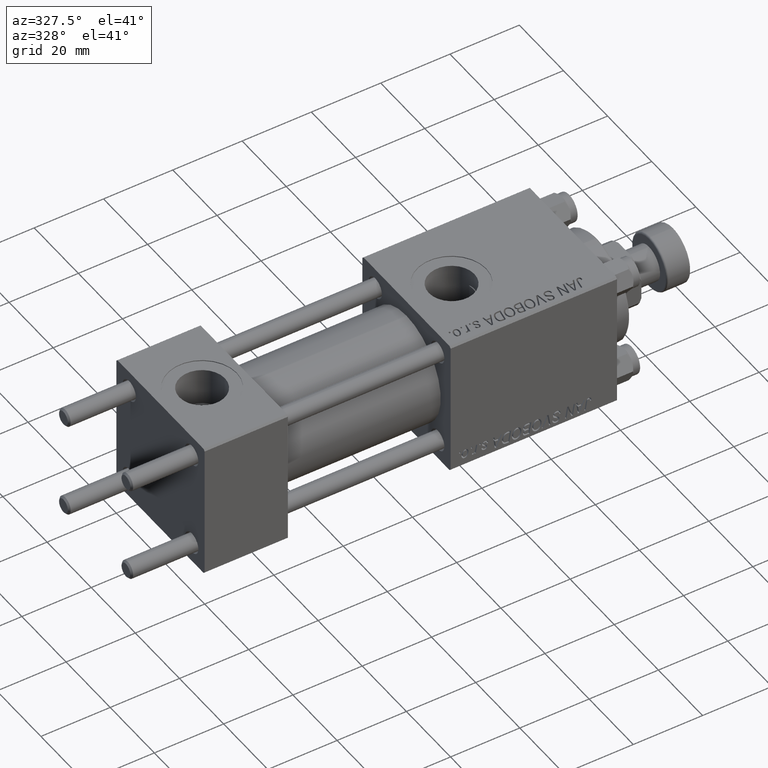
[diagram: clean part render]
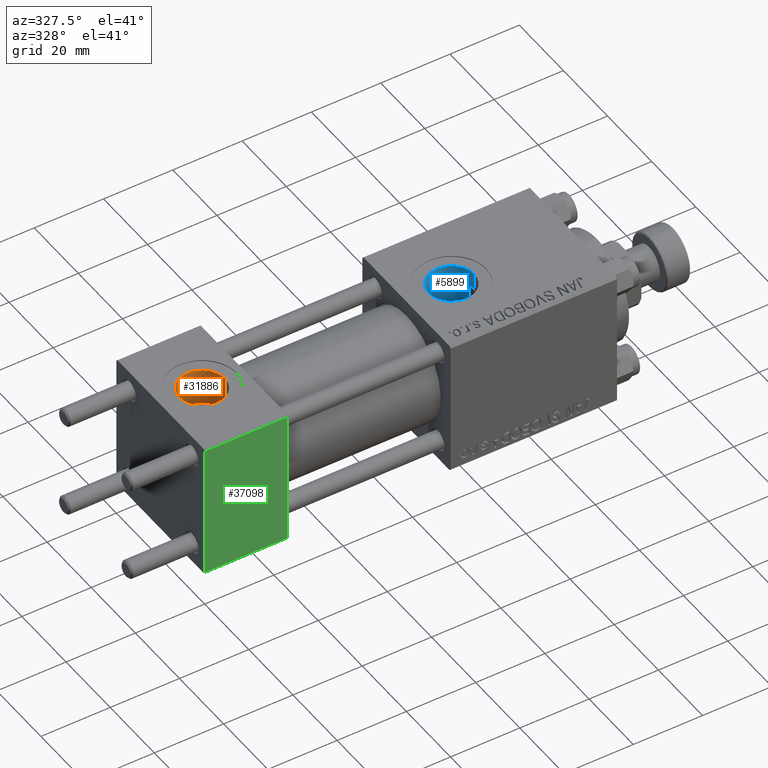
[diagram: same view with three faces highlighted in distinct colors, each labeled with its STEP entity id]
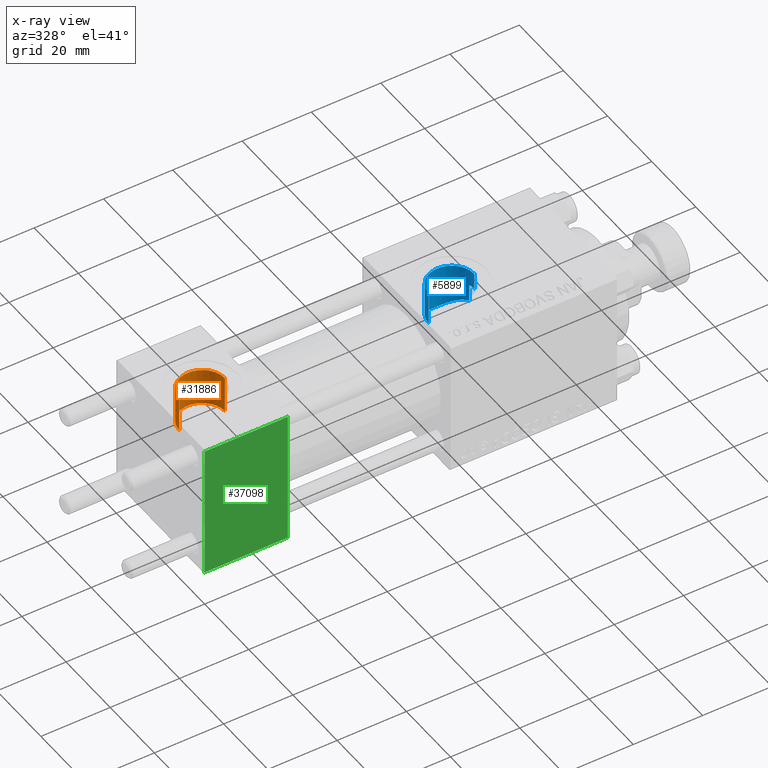
[diagram: x-ray of the same camera — body ghosted, the three highlighted faces saturated]
A machine part, auxiliary view with three faces highlighted in distinct colors.
The next image is the same camera in x-ray (body ghosted, the three faces saturated) — at least one of them is partly hidden behind the body in this view.
Their STEP definitions:

[orange] entity #31886 — the highlighted cylindrical surface (edge-blend (fillet) strip) has radius 6.58 mm, axis along (0, 0, 1).
#996 = CARTESIAN_POINT ( 'NONE',  ( 5.420000000000000817, 8.058175938389596335E-16, 9.165987261146492315 ) ) ;
#7653 = AXIS2_PLACEMENT_3D ( 'NONE', #33316, #37013, #29394 ) ;
#11000 = AXIS2_PLACEMENT_3D ( 'NONE', #48527, #28804, #32463 ) ;
#11400 = CARTESIAN_POINT ( 'NONE',  ( 18.57999999999999829, 1.540743955509788682E-30, 19.79999999999999716 ) ) ;
#12525 = VERTEX_POINT ( 'NONE', #28322 ) ;
#12731 = VERTEX_POINT ( 'NONE', #11400 ) ;
#12765 = FACE_OUTER_BOUND ( 'NONE', #50282, .T. ) ;
#13767 = ORIENTED_EDGE ( 'NONE', *, *, #27218, .T. ) ;
#14567 = EDGE_CURVE ( 'NONE', #42117, #50186, #26079, .T. ) ;
#16336 = EDGE_CURVE ( 'NONE', #42117, #12525, #41711, .T. ) ;
#17946 = CARTESIAN_POINT ( 'NONE',  ( 12.00000000000000000, 1.540743955509788682E-30, 9.165987261146492315 ) ) ;
#23404 = LINE ( 'NONE', #40451, #31053 ) ;
#26079 = LINE ( 'NONE', #34978, #45047 ) ;
#26105 = DIRECTION ( 'NONE',  ( 1.000000000000000000, 0.000000000000000000, 0.000000000000000000 ) ) ;
#27218 = EDGE_CURVE ( 'NONE', #12525, #12731, #23404, .T. ) ;
#27862 = DIRECTION ( 'NONE',  ( -0.000000000000000000, -0.000000000000000000, 1.000000000000000000 ) ) ;
#28322 = CARTESIAN_POINT ( 'NONE',  ( 18.57999999999999829, 1.540743955509788682E-30, 9.165987261146492315 ) ) ;
#28500 = ORIENTED_EDGE ( 'NONE', *, *, #16336, .T. ) ;
#28804 = DIRECTION ( 'NONE',  ( -0.000000000000000000, -0.000000000000000000, 1.000000000000000000 ) ) ;
#29394 = DIRECTION ( 'NONE',  ( 1.000000000000000000, 0.000000000000000000, 0.000000000000000000 ) ) ;
#30302 = DIRECTION ( 'NONE',  ( -0.000000000000000000, -0.000000000000000000, -1.000000000000000000 ) ) ;
#30801 = AXIS2_PLACEMENT_3D ( 'NONE', #17946, #30302, #26105 ) ;
#31053 = VECTOR ( 'NONE', #27862, 1000.000000000000000 ) ;
#31111 = ORIENTED_EDGE ( 'NONE', *, *, #14567, .F. ) ;
#31145 = CARTESIAN_POINT ( 'NONE',  ( 5.420000000000000817, 8.058175938389596335E-16, 19.79999999999999716 ) ) ;
#31886 = ADVANCED_FACE ( 'NONE', ( #12765 ), #40876, .F. ) ;
#32463 = DIRECTION ( 'NONE',  ( 1.000000000000000000, 0.000000000000000000, 0.000000000000000000 ) ) ;
#33316 = CARTESIAN_POINT ( 'NONE',  ( 12.00000000000000000, 1.540743955509788682E-30, 19.79999999999999716 ) ) ;
#34978 = CARTESIAN_POINT ( 'NONE',  ( 5.420000000000000817, 8.058175938389596335E-16, 9.199999999999995737 ) ) ;
#37013 = DIRECTION ( 'NONE',  ( 0.000000000000000000, 0.000000000000000000, 1.000000000000000000 ) ) ;
#37019 = CIRCLE ( 'NONE', #7653, 6.579999999999999183 ) ;
#40451 = CARTESIAN_POINT ( 'NONE',  ( 18.57999999999999829, 1.540743955509788682E-30, 9.199999999999995737 ) ) ;
#40534 = ORIENTED_EDGE ( 'NONE', *, *, #50736, .T. ) ;
#40876 = CYLINDRICAL_SURFACE ( 'NONE', #11000, 6.579999999999999183 ) ;
#41711 = CIRCLE ( 'NONE', #30801, 6.579999999999999183 ) ;
#42117 = VERTEX_POINT ( 'NONE', #996 ) ;
#42118 = DIRECTION ( 'NONE',  ( -0.000000000000000000, -0.000000000000000000, 1.000000000000000000 ) ) ;
#45047 = VECTOR ( 'NONE', #42118, 1000.000000000000000 ) ;
#48527 = CARTESIAN_POINT ( 'NONE',  ( 12.00000000000000000, 1.540743955509788682E-30, 9.199999999999995737 ) ) ;
#50186 = VERTEX_POINT ( 'NONE', #31145 ) ;
#50282 = EDGE_LOOP ( 'NONE', ( #31111, #28500, #13767, #40534 ) ) ;
#50736 = EDGE_CURVE ( 'NONE', #12731, #50186, #37019, .T. ) ;

[blue] entity #5899 — the highlighted cylindrical surface (edge-blend (fillet) strip) has radius 6.58 mm, axis along (0, 0, -1).
#762 = CARTESIAN_POINT ( 'NONE',  ( 84.00000000000000000, -1.734723475976806897E-15, 42.80000000000000426 ) ) ;
#874 = CARTESIAN_POINT ( 'NONE',  ( 77.46686778345895164, 0.8095015862947814167, 9.969213526992616536 ) ) ;
#1139 = CARTESIAN_POINT ( 'NONE',  ( 77.56787295357401035, 1.401479312405162991, 9.903286656888813155 ) ) ;
#1396 = CARTESIAN_POINT ( 'NONE',  ( 77.61336014068284328, 1.596001079245348286, 9.873755022540338544 ) ) ;
#1666 = CARTESIAN_POINT ( 'NONE',  ( 80.48063172447184854, 5.572696846752806188, 8.306367771682850787 ) ) ;
#2325 = CIRCLE ( 'NONE', #43478, 6.580000000001542837 ) ;
#2723 = CARTESIAN_POINT ( 'NONE',  ( 82.63059524258804345, 6.448383834521553837, 7.643587924518619126 ) ) ;
#3987 = CARTESIAN_POINT ( 'NONE',  ( 90.58000000000154728, -9.289058821376599092E-16, 19.80000000000000071 ) ) ;
#4995 = EDGE_CURVE ( 'NONE', #40709, #43836, #6491, .T. ) ;
#5359 = CARTESIAN_POINT ( 'NONE',  ( 77.42954415386088840, 0.4077000747566019712, 9.993712614140443762 ) ) ;
#5483 = ORIENTED_EDGE ( 'NONE', *, *, #4995, .F. ) ;
#5749 = VERTEX_POINT ( 'NONE', #30791 ) ;
#5885 = CARTESIAN_POINT ( 'NONE',  ( 88.19646942446757976, 5.082480376344788553, 8.617202020241876426 ) ) ;
#5899 = ADVANCED_FACE ( 'NONE', ( #29427 ), #36779, .F. ) ;
#6327 = DIRECTION ( 'NONE',  ( 1.000000000000000000, 0.000000000000000000, 0.000000000000000000 ) ) ;
#6491 = LINE ( 'NONE', #33277, #46435 ) ;
#6891 = CARTESIAN_POINT ( 'NONE',  ( 90.30000000000001137, 1.899052395280416805, 14.87930105885285670 ) ) ;
#8020 = EDGE_CURVE ( 'NONE', #5749, #12297, #42600, .T. ) ;
#9553 = CARTESIAN_POINT ( 'NONE',  ( 78.16952377845269950, 3.074422462291888092, 9.522197844733907957 ) ) ;
#9729 = DIRECTION ( 'NONE',  ( -0.000000000000000000, -0.000000000000000000, -1.000000000000000000 ) ) ;
#10312 = CARTESIAN_POINT ( 'NONE',  ( 90.58000000000154728, 1.836897619300433381E-15, 15.00000000000000000 ) ) ;
#10363 = CARTESIAN_POINT ( 'NONE',  ( 86.91556528692413508, 5.911601028564673399, 8.067779981975611747 ) ) ;
#10619 = CARTESIAN_POINT ( 'NONE',  ( 83.42309077254218153, 6.566894182961647175, 7.542015064089320653 ) ) ;
#11161 = AXIS2_PLACEMENT_3D ( 'NONE', #762, #49405, #17589 ) ;
#12297 = VERTEX_POINT ( 'NONE', #13384 ) ;
#12976 = CARTESIAN_POINT ( 'NONE',  ( 77.78548192684070273, 2.171457386535522005, 9.763238620524230527 ) ) ;
#13239 = CARTESIAN_POINT ( 'NONE',  ( 78.47036046458491398, 3.571696826447866790, 9.342058825423189106 ) ) ;
#13321 = DIRECTION ( 'NONE',  ( 0.000000000000000000, 0.000000000000000000, -1.000000000000000000 ) ) ;
#13384 = CARTESIAN_POINT ( 'NONE',  ( 77.41999999999846693, 1.225496641077837722E-15, 9.999999999999998224 ) ) ;
#14030 = CARTESIAN_POINT ( 'NONE',  ( 87.89770756635016369, 5.314995828701263747, 8.474223888701592600 ) ) ;
#15253 = CARTESIAN_POINT ( 'NONE',  ( 77.41999999999846693, -1.734723475976806897E-15, 42.80000000000000426 ) ) ;
#16139 = CARTESIAN_POINT ( 'NONE',  ( 90.58000000000154728, 1.836897619300433381E-15, 15.00000000000000000 ) ) ;
#16919 = CARTESIAN_POINT ( 'NONE',  ( 77.49462714226881133, 1.008229431408755206, 9.951015238921746331 ) ) ;
#17589 = DIRECTION ( 'NONE',  ( -1.000000000000000000, 0.000000000000000000, 0.000000000000000000 ) ) ;
#18503 = CARTESIAN_POINT ( 'NONE',  ( 89.67635654325876260, 3.350987301719415612, 9.428927821902620465 ) ) ;
#18754 = CARTESIAN_POINT ( 'NONE',  ( 87.25879362717218157, 5.729011173614271257, 8.200005008995757905 ) ) ;
#18957 = EDGE_CURVE ( 'NONE', #40709, #25751, #27992, .T. ) ;
#19714 = CARTESIAN_POINT ( 'NONE',  ( 90.30000000000001137, 1.899052395280416805, 9.818024241158690657 ) ) ;
#21386 = CARTESIAN_POINT ( 'NONE',  ( 78.92452899478391259, 4.191895100649813521, 9.080368974035573970 ) ) ;
#21406 = B_SPLINE_CURVE_WITH_KNOTS ( 'NONE', 3,
 ( #21649, #25585, #5359, #874, #16919, #1139, #1396, #29534, #12976, #45568, #9553, #13239, #45045, #41095, #21386, #37411, #41623, #37669, #1666, #38204, #46630, #30586, #2723, #10619, #26645, #42420, #42674, #50053, #22710, #10363, #18754, #14030, #5885, #25856, #31785, #37942, #18503, #43636, #34524, #19714 ),
 .UNSPECIFIED., .F., .F.,
 ( 4, 2, 2, 2, 2, 2, 2, 2, 2, 2, 2, 2, 2, 2, 2, 2, 2, 2, 2, 4 ),
 ( 0.01932465968159079173, 0.01992623976258372023, 0.02052781984357664874, 0.02112939992456958072, 0.02173098000556250922, 0.02293414016754835236, 0.02353572024854126005, 0.02413730032953417121, 0.02534046049151999352, 0.02654362065350581931, 0.02774678081549164163, 0.02894994097747746048, 0.03015310113946328627, 0.03135626130144910512, 0.03255942146343493437, 0.03376258162542075669, 0.03496574178740657901, 0.03616890194939239439, 0.03737206211137822365, 0.03857522227336403903 ),
 .UNSPECIFIED. ) ;
#21636 = EDGE_CURVE ( 'NONE', #5749, #38734, #2325, .T. ) ;
#21649 = CARTESIAN_POINT ( 'NONE',  ( 77.41999999999846693, 1.225496641077837722E-15, 9.999999999999998224 ) ) ;
#22710 = CARTESIAN_POINT ( 'NONE',  ( 86.19913985023920588, 6.213801701240062592, 7.837395548022279002 ) ) ;
#22915 = CARTESIAN_POINT ( 'NONE',  ( 90.48627106246551932, 1.281108574220367835, 14.95816952780117504 ) ) ;
#23772 = EDGE_CURVE ( 'NONE', #12297, #43836, #21406, .T. ) ;
#24013 = CARTESIAN_POINT ( 'NONE',  ( 90.30000000000001137, 1.899052395280416805, 9.818024241158690657 ) ) ;
#25444 = CARTESIAN_POINT ( 'NONE',  ( 90.30000000000001137, 1.899052395280416805, 14.87930105885285670 ) ) ;
#25585 = CARTESIAN_POINT ( 'NONE',  ( 77.41999999999845272, 0.2033100982330938999, 10.00000000000000178 ) ) ;
#25751 = VERTEX_POINT ( 'NONE', #16139 ) ;
#25856 = CARTESIAN_POINT ( 'NONE',  ( 88.75576429004956935, 4.563405353889827154, 8.902983152274309475 ) ) ;
#26303 = CARTESIAN_POINT ( 'NONE',  ( 84.00000000000000000, -1.734723475976806897E-15, 19.80000000000000071 ) ) ;
#26645 = CARTESIAN_POINT ( 'NONE',  ( 83.83547327919450254, 6.590311166413664878, 7.521181861579123051 ) ) ;
#27992 = B_SPLINE_CURVE_WITH_KNOTS ( 'NONE', 3,
 ( #6891, #22915, #51308, #10312 ),
 .UNSPECIFIED., .F., .F.,
 ( 4, 4 ),
 ( 0.000000000000000000, 0.001923267627926015643 ),
 .UNSPECIFIED. ) ;
#29427 = FACE_OUTER_BOUND ( 'NONE', #41044, .T. ) ;
#29534 = CARTESIAN_POINT ( 'NONE',  ( 77.72206397560209723, 1.980885511870404958, 9.803792647692771922 ) ) ;
#29735 = ORIENTED_EDGE ( 'NONE', *, *, #21636, .F. ) ;
#30586 = CARTESIAN_POINT ( 'NONE',  ( 82.24366288463141927, 6.353544079654159127, 7.723932937122186537 ) ) ;
#30791 = CARTESIAN_POINT ( 'NONE',  ( 77.41999999999846693, -1.734723475976806897E-15, 19.80000000000000071 ) ) ;
#31361 = VECTOR ( 'NONE', #35468, 1000.000000000000000 ) ;
#31785 = CARTESIAN_POINT ( 'NONE',  ( 89.01137633077168232, 4.281013922256128978, 9.043334261708560362 ) ) ;
#32360 = ORIENTED_EDGE ( 'NONE', *, *, #18957, .T. ) ;
#33011 = ORIENTED_EDGE ( 'NONE', *, *, #8020, .T. ) ;
#33277 = CARTESIAN_POINT ( 'NONE',  ( 90.30000000000001137, 1.899052395280416805, 42.80000000000000426 ) ) ;
#33765 = LINE ( 'NONE', #41399, #49384 ) ;
#34524 = CARTESIAN_POINT ( 'NONE',  ( 90.18394818542550695, 2.284047792793505671, 9.743556464968632369 ) ) ;
#35468 = DIRECTION ( 'NONE',  ( 0.000000000000000000, 0.000000000000000000, -1.000000000000000000 ) ) ;
#36779 = CYLINDRICAL_SURFACE ( 'NONE', #11161, 6.580000000001542837 ) ;
#37411 = CARTESIAN_POINT ( 'NONE',  ( 79.29945075163941226, 4.620086428005418355, 8.874409408838401347 ) ) ;
#37669 = CARTESIAN_POINT ( 'NONE',  ( 80.16598197494323585, 5.361182684198095849, 8.446034601453003887 ) ) ;
#37942 = CARTESIAN_POINT ( 'NONE',  ( 89.47113332388794049, 3.675278640241169903, 9.305982037814699126 ) ) ;
#38204 = CARTESIAN_POINT ( 'NONE',  ( 81.14578869086805923, 5.940907422896437140, 8.047130836318883595 ) ) ;
#38734 = VERTEX_POINT ( 'NONE', #3987 ) ;
#40125 = EDGE_CURVE ( 'NONE', #38734, #25751, #33765, .T. ) ;
#40709 = VERTEX_POINT ( 'NONE', #25444 ) ;
#41044 = EDGE_LOOP ( 'NONE', ( #42909, #29735, #33011, #43771, #5483, #32360 ) ) ;
#41095 = CARTESIAN_POINT ( 'NONE',  ( 78.80526461953910200, 4.043265572017154419, 9.147692279144168381 ) ) ;
#41399 = CARTESIAN_POINT ( 'NONE',  ( 90.58000000000154728, -9.289058821376597120E-16, 42.80000000000000426 ) ) ;
#41623 = CARTESIAN_POINT ( 'NONE',  ( 79.57202415259416739, 4.882110597333562119, 8.731710965079535924 ) ) ;
#42420 = CARTESIAN_POINT ( 'NONE',  ( 84.64208553656848721, 6.561020993393114509, 7.546746410828856000 ) ) ;
#42600 = LINE ( 'NONE', #15253, #31361 ) ;
#42674 = CARTESIAN_POINT ( 'NONE',  ( 85.04005595195334877, 6.509727955661519516, 7.591870904138360743 ) ) ;
#42909 = ORIENTED_EDGE ( 'NONE', *, *, #40125, .F. ) ;
#43478 = AXIS2_PLACEMENT_3D ( 'NONE', #26303, #9729, #6327 ) ;
#43636 = CARTESIAN_POINT ( 'NONE',  ( 90.03413885016284723, 2.653169395164264976, 9.648548488114556676 ) ) ;
#43771 = ORIENTED_EDGE ( 'NONE', *, *, #23772, .T. ) ;
#43836 = VERTEX_POINT ( 'NONE', #24013 ) ;
#45045 = CARTESIAN_POINT ( 'NONE',  ( 78.57832010883362273, 3.733451394700813442, 9.278448749827713726 ) ) ;
#45346 = DIRECTION ( 'NONE',  ( 0.000000000000000000, 0.000000000000000000, -1.000000000000000000 ) ) ;
#45568 = CARTESIAN_POINT ( 'NONE',  ( 77.99778063450312970, 2.725070813951062210, 9.629029610001953898 ) ) ;
#46435 = VECTOR ( 'NONE', #13321, 1000.000000000000000 ) ;
#46630 = CARTESIAN_POINT ( 'NONE',  ( 81.49663029925129365, 6.097981844537015306, 7.927249195841285179 ) ) ;
#49384 = VECTOR ( 'NONE', #45346, 1000.000000000000000 ) ;
#49405 = DIRECTION ( 'NONE',  ( 0.000000000000000000, 0.000000000000000000, -1.000000000000000000 ) ) ;
#50053 = CARTESIAN_POINT ( 'NONE',  ( 85.82542148765864454, 6.334517411161552758, 7.738665973506989815 ) ) ;
#51308 = CARTESIAN_POINT ( 'NONE',  ( 90.58000000000154728, 0.6482402319151120418, 15.00000000000000000 ) ) ;

[green] entity #37098 — the highlighted planar face has unit normal (0, 1, 0).
#1510 = LINE ( 'NONE', #30438, #4702 ) ;
#1850 = DIRECTION ( 'NONE',  ( 0.000000000000000000, 8.673617379884036705E-17, -1.000000000000000000 ) ) ;
#2615 = ORIENTED_EDGE ( 'NONE', *, *, #21607, .T. ) ;
#4702 = VECTOR ( 'NONE', #41737, 1000.000000000000000 ) ;
#4870 = CARTESIAN_POINT ( 'NONE',  ( 24.00000000000000000, -20.00000000000000355, 19.99999999999998934 ) ) ;
#5098 = DIRECTION ( 'NONE',  ( 0.000000000000000000, 8.673617379884036705E-17, -1.000000000000000000 ) ) ;
#7288 = CARTESIAN_POINT ( 'NONE',  ( 24.00000000000000000, -20.00000000000000000, -19.49999999999999645 ) ) ;
#7512 = VECTOR ( 'NONE', #5098, 1000.000000000000000 ) ;
#8696 = CARTESIAN_POINT ( 'NONE',  ( 0.000000000000000000, -20.00000000000000355, 19.99999999999998934 ) ) ;
#8819 = DIRECTION ( 'NONE',  ( 0.000000000000000000, -8.673617379884036705E-17, 1.000000000000000000 ) ) ;
#10344 = LINE ( 'NONE', #30309, #48764 ) ;
#13943 = CARTESIAN_POINT ( 'NONE',  ( 24.00000000000000000, -20.00000000000000355, 19.49999999999998224 ) ) ;
#14170 = EDGE_CURVE ( 'NONE', #45252, #31868, #1510, .T. ) ;
#15760 = EDGE_LOOP ( 'NONE', ( #2615, #24933, #18492, #27569 ) ) ;
#18492 = ORIENTED_EDGE ( 'NONE', *, *, #42417, .F. ) ;
#21607 = EDGE_CURVE ( 'NONE', #31868, #24801, #49174, .T. ) ;
#21699 = CARTESIAN_POINT ( 'NONE',  ( 0.000000000000000000, -20.00000000000000355, 19.49999999999998224 ) ) ;
#24801 = VERTEX_POINT ( 'NONE', #48176 ) ;
#24912 = AXIS2_PLACEMENT_3D ( 'NONE', #4870, #44578, #8819 ) ;
#24933 = ORIENTED_EDGE ( 'NONE', *, *, #32375, .T. ) ;
#27569 = ORIENTED_EDGE ( 'NONE', *, *, #14170, .T. ) ;
#28535 = PLANE ( 'NONE',  #24912 ) ;
#30309 = CARTESIAN_POINT ( 'NONE',  ( 24.00000000000000000, -20.00000000000000000, -19.49999999999999645 ) ) ;
#30438 = CARTESIAN_POINT ( 'NONE',  ( 24.00000000000000000, -20.00000000000000355, 19.49999999999998224 ) ) ;
#30819 = DIRECTION ( 'NONE',  ( 1.000000000000000000, 0.000000000000000000, 0.000000000000000000 ) ) ;
#31868 = VERTEX_POINT ( 'NONE', #21699 ) ;
#32375 = EDGE_CURVE ( 'NONE', #24801, #44807, #10344, .T. ) ;
#35060 = VECTOR ( 'NONE', #1850, 1000.000000000000000 ) ;
#37098 = ADVANCED_FACE ( 'NONE', ( #49045 ), #28535, .F. ) ;
#40325 = CARTESIAN_POINT ( 'NONE',  ( 24.00000000000000000, -20.00000000000000355, 19.99999999999998934 ) ) ;
#41737 = DIRECTION ( 'NONE',  ( -1.000000000000000000, 0.000000000000000000, 0.000000000000000000 ) ) ;
#42417 = EDGE_CURVE ( 'NONE', #45252, #44807, #48744, .T. ) ;
#44578 = DIRECTION ( 'NONE',  ( -0.000000000000000000, 1.000000000000000000, 8.673617379884036705E-17 ) ) ;
#44807 = VERTEX_POINT ( 'NONE', #7288 ) ;
#45252 = VERTEX_POINT ( 'NONE', #13943 ) ;
#48176 = CARTESIAN_POINT ( 'NONE',  ( 0.000000000000000000, -20.00000000000000000, -19.49999999999999645 ) ) ;
#48744 = LINE ( 'NONE', #40325, #7512 ) ;
#48764 = VECTOR ( 'NONE', #30819, 1000.000000000000000 ) ;
#49045 = FACE_OUTER_BOUND ( 'NONE', #15760, .T. ) ;
#49174 = LINE ( 'NONE', #8696, #35060 ) ;